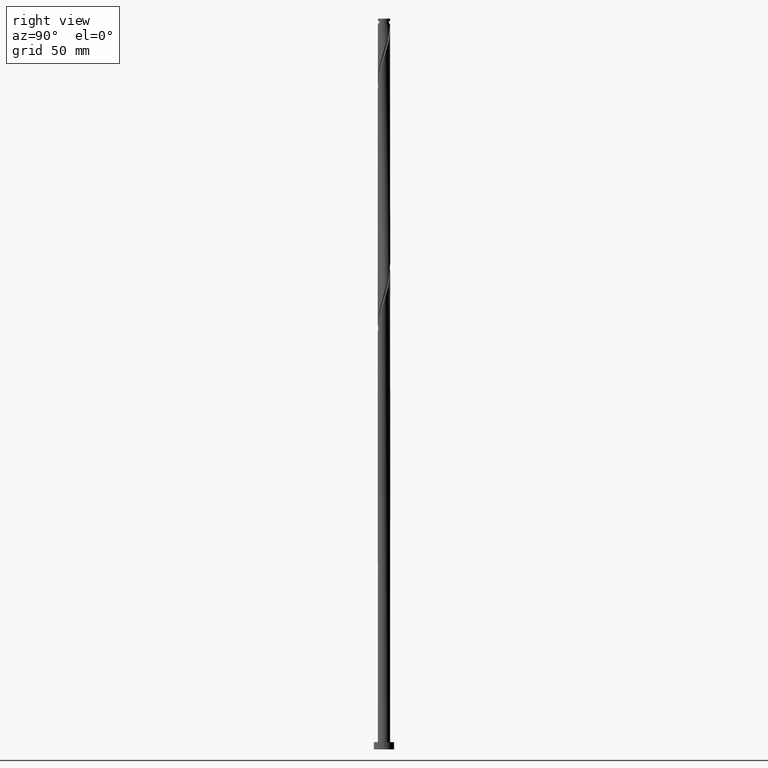
[diagram: clean part render]
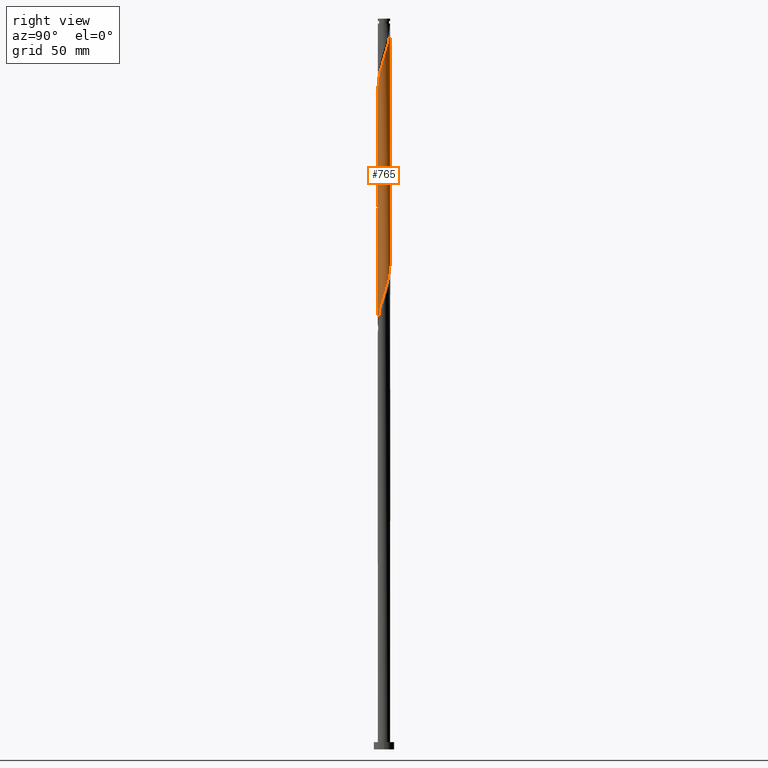
[diagram: same view with one face highlighted and labeled with its STEP entity id]
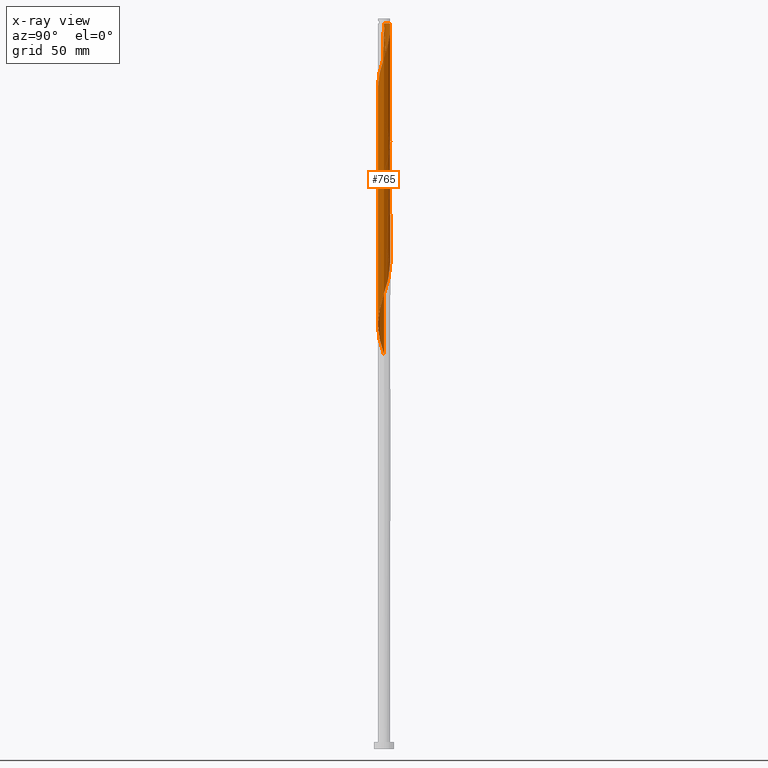
[diagram: x-ray of the same camera — body ghosted, the highlighted face saturated]
A machine part, right view. The second image highlights one B-rep face of the part: STEP entity #765.
The next image is the same camera in x-ray: the body ghosted, the highlighted face saturated — about 0% of this face is hidden behind the body in this view.
In plain terms, the highlighted cylindrical surface (bore or boss wall) has radius 4.25 mm, axis along (-0, -0, -1).
Its self-contained STEP definition (entity closure, byte-faithful):
#1 = CARTESIAN_POINT ( 'NONE',  ( -4.250000000000000000, -1.752932060623057619E-15, 436.7433290349165986 ) ) ;
#7 = ORIENTED_EDGE ( 'NONE', *, *, #824, .F. ) ;
#20 = CARTESIAN_POINT ( 'NONE',  ( 1.642039868822442683, 3.919975136298390339, 327.3156320569198101 ) ) ;
#28 = CARTESIAN_POINT ( 'NONE',  ( 3.311961364131821295, 2.696039358933081331, 320.8052153902530108 ) ) ;
#39 = CARTESIAN_POINT ( 'NONE',  ( -4.248298052652877743, -0.4355226265580420253, 432.7843820569196396 ) ) ;
#48 = CARTESIAN_POINT ( 'NONE',  ( -4.249999999999952038, 0.000000000000000000, 496.5864653902530677 ) ) ;
#50 = CARTESIAN_POINT ( 'NONE',  ( -1.223382839876598460, -4.091582912457441878, 448.4093820569197533 ) ) ;
#74 = CARTESIAN_POINT ( 'NONE',  ( -4.171608679362800665, -0.8125152467892268193, 355.9614653902530108 ) ) ;
#86 = CARTESIAN_POINT ( 'NONE',  ( -2.722351768502281999, -3.290367327662780728, 365.0760487235864957 ) ) ;
#95 = CARTESIAN_POINT ( 'NONE',  ( 0.01693748642809034602, -4.249966249460524814, 452.3156320569196964 ) ) ;
#96 = CARTESIAN_POINT ( 'NONE',  ( -0.4355226265580428024, -4.248298052652872414, 372.8885487235865526 ) ) ;
#107 = CARTESIAN_POINT ( 'NONE',  ( -3.311961364131819519, -2.696039358933082219, 362.4718820569198101 ) ) ;
#118 = CARTESIAN_POINT ( 'NONE',  ( 0.8125152467892264863, -4.171608679362800665, 376.7947987235864389 ) ) ;
#120 = CARTESIAN_POINT ( 'NONE',  ( 0.01693748642809234442, 4.249966249460520373, 415.8572987235864957 ) ) ;
#121 = CARTESIAN_POINT ( 'NONE',  ( -3.774294141907104105, -1.998104109595876698, 359.8677153902530677 ) ) ;
#122 = CARTESIAN_POINT ( 'NONE',  ( -4.250000000000001776, 0.008468776840620492394, 436.7169754803994124 ) ) ;
#126 = CARTESIAN_POINT ( 'NONE',  ( -2.375237744811971030, -3.524307826456217541, 283.0447987235864957 ) ) ;
#140 = CARTESIAN_POINT ( 'NONE',  ( 4.164999999999999147, -0.8457393215406326936, 309.0864653902531245 ) ) ;
#141 = CARTESIAN_POINT ( 'NONE',  ( 1.642039868822442683, 3.919975136298390339, 410.6489653902530108 ) ) ;
#148 = CARTESIAN_POINT ( 'NONE',  ( 3.524307826456221981, 2.375237744811974139, 480.9614653902530677 ) ) ;
#150 = CARTESIAN_POINT ( 'NONE',  ( 1.610743474736235248, -3.932938527182270327, 296.0656320569198670 ) ) ;
#162 = CARTESIAN_POINT ( 'NONE',  ( 2.347071734264479126, -3.543127753019461590, 298.6697987235864389 ) ) ;
#169 = CARTESIAN_POINT ( 'NONE',  ( -4.250000000000000888, -0.4100392134481713469, 271.3526424736659806 ) ) ;
#185 = EDGE_CURVE ( 'NONE', #831, #1007, #481, .T. ) ;
#196 = CARTESIAN_POINT ( 'NONE',  ( -2.696039358933081775, 3.311961364131819519, 341.6385487235864389 ) ) ;
#206 = CARTESIAN_POINT ( 'NONE',  ( -0.8125152467892270414, 4.171608679362800665, 335.1281320569197533 ) ) ;
#216 = CARTESIAN_POINT ( 'NONE',  ( -4.081701947347132098, -1.255956016523221752, 435.3885487235862684 ) ) ;
#224 = CARTESIAN_POINT ( 'NONE',  ( -4.081701947347124992, 1.255956016523221308, 349.4510487235863820 ) ) ;
#232 = CARTESIAN_POINT ( 'NONE',  ( 3.543127753019465143, -2.347071734264483567, 465.3364653902530108 ) ) ;
#240 = CARTESIAN_POINT ( 'NONE',  ( -0.4016476537018593418, -4.251634446268169221, 451.0135487235863820 ) ) ;
#256 = CARTESIAN_POINT ( 'NONE',  ( -1.642039868822442683, -3.919975136298390783, 368.9822987235863820 ) ) ;
#265 = CARTESIAN_POINT ( 'NONE',  ( 2.993203343297936581, 3.017156566317051869, 483.5656320569196396 ) ) ;
#268 = CIRCLE ( 'NONE', #463, 4.249999999999952038 ) ;
#278 = CARTESIAN_POINT ( 'NONE',  ( 4.250000000000003553, 0.4100392134481592454, 396.3526424736660374 ) ) ;
#285 = CARTESIAN_POINT ( 'NONE',  ( 4.165000000000003588, 0.8457393215406316944, 475.7531320569197533 ) ) ;
#287 = CARTESIAN_POINT ( 'NONE',  ( -3.932938527182269439, -1.610743474736235248, 358.5656320569198670 ) ) ;
#293 = CARTESIAN_POINT ( 'NONE',  ( -3.932938527182269439, -1.610743474736235248, 275.2322987235864957 ) ) ;
#297 = CARTESIAN_POINT ( 'NONE',  ( 3.290367327662780728, -2.722351768502281999, 302.5760487235864957 ) ) ;
#318 = CARTESIAN_POINT ( 'NONE',  ( -1.610743474736238801, -3.932938527182274768, 447.1072987235863252 ) ) ;
#325 = ORIENTED_EDGE ( 'NONE', *, *, #334, .F. ) ;
#334 = EDGE_CURVE ( 'NONE', #987, #831, #1754, .T. ) ;
#338 = CARTESIAN_POINT ( 'NONE',  ( -3.758248325249661015, -2.028123721121661838, 437.9927153902530677 ) ) ;
#349 = CARTESIAN_POINT ( 'NONE',  ( -2.347071734264483123, -3.543127753019464699, 444.5031320569196964 ) ) ;
#360 = CARTESIAN_POINT ( 'NONE',  ( -0.4016476537018580650, 4.251634446268164780, 333.8260487235863820 ) ) ;
#369 = CARTESIAN_POINT ( 'NONE',  ( 4.171608679362805105, -0.8125152467892311492, 470.5447987235863820 ) ) ;
#386 = CARTESIAN_POINT ( 'NONE',  ( 3.524307826456216652, -2.375237744811972807, 387.2114653902530108 ) ) ;
#405 = CARTESIAN_POINT ( 'NONE',  ( -4.251634446268164780, -0.4016476537018571769, 354.6593820569197533 ) ) ;
#406 = CARTESIAN_POINT ( 'NONE',  ( -2.993203343297932584, 3.017156566317050537, 426.2739653902530677 ) ) ;
#414 = CARTESIAN_POINT ( 'NONE',  ( 4.081701947347132098, 1.255956016523219754, 477.0552153902530108 ) ) ;
#416 = CARTESIAN_POINT ( 'NONE',  ( 0.8457393215406330267, 4.164999999999999147, 329.9197987235864389 ) ) ;
#424 = CARTESIAN_POINT ( 'NONE',  ( 3.932938527182270327, 1.610743474736234804, 400.2322987235864389 ) ) ;
#425 = CARTESIAN_POINT ( 'NONE',  ( -4.164999999999999147, 0.8457393215406323606, 434.0864653902530677 ) ) ;
#435 = CARTESIAN_POINT ( 'NONE',  ( 4.248298052652872414, -0.4355226265580450229, 310.3885487235863820 ) ) ;
#444 = CARTESIAN_POINT ( 'NONE',  ( 3.290367327662785168, 2.722351768502282887, 482.2635487235864389 ) ) ;
#446 = CARTESIAN_POINT ( 'NONE',  ( 3.919975136298390339, -1.642039868822442683, 306.4822987235864957 ) ) ;
#457 = CARTESIAN_POINT ( 'NONE',  ( 0.8125152467892264863, -4.171608679362800665, 293.4614653902530677 ) ) ;
#458 = CARTESIAN_POINT ( 'NONE',  ( 2.028123721121660950, 3.758248325249654798, 409.3468820569197533 ) ) ;
#463 = AXIS2_PLACEMENT_3D ( 'NONE', #775, #472, #929 ) ;
#467 = CARTESIAN_POINT ( 'NONE',  ( 2.028123721121660950, 3.758248325249654798, 326.0135487235864957 ) ) ;
#468 = CARTESIAN_POINT ( 'NONE',  ( -4.165000000000003588, -0.8457393215406322495, 434.0864653902530677 ) ) ;
#472 = DIRECTION ( 'NONE',  ( -0.000000000000000000, -0.000000000000000000, -1.000000000000000000 ) ) ;
#478 = CARTESIAN_POINT ( 'NONE',  ( 4.091582912457437438, 1.223382839876595352, 315.5968820569198101 ) ) ;
#479 = LINE ( 'NONE', #934, #1933 ) ;
#481 =( BOUNDED_CURVE ( )  B_SPLINE_CURVE ( 2, ( #566, #998, #1305, #555, #1775, #1784, #1630, #1478, #386, #1762, #574, #1019, #1610, #1009, #988, #1600, #118, #853, #1460, #96, #706, #1796, #256, #1467, #844, #86, #1918, #107, #1928, #121, #287, #1962, #74, #405, #1090, #1753, #1120, #224, #1110, #1269, #1249, #1552, #500, #196, #1899, #526, #1725, #1134, #206, #360, #960, #1786, #416, #1385, #20, #467, #1044, #1070, #917, #28, #626, #1682, #898, #478, #638, #1339, #1811, #435, #140, #1974, #446, #1055, #759, #297, #1522, #907, #162, #1510, #150, #608, #457, #1062, #1668, #1512, #889, #1633, #1806, #1005, #126, #1956, #1475, #746, #1335, #595, #293, #1828, #1860, #169, #1393 ),
 .UNSPECIFIED., .F., .T. ) 
 B_SPLINE_CURVE_WITH_KNOTS ( ( 3, 2, 2, 2, 2, 2, 2, 2, 2, 2, 2, 2, 2, 2, 2, 2, 2, 2, 2, 2, 2, 2, 2, 2, 2, 2, 2, 2, 2, 2, 2, 2, 2, 2, 2, 2, 2, 2, 2, 2, 2, 2, 2, 2, 2, 2, 2, 2, 2, 3 ),
 ( 0.5545286902180873723, 0.5546875000000000000, 0.5625000000000000000, 0.5703125000000000000, 0.5781250000000000000, 0.5859375000000000000, 0.5937500000000000000, 0.6015625000000000000, 0.6093750000000000000, 0.6171875000000000000, 0.6250000000000000000, 0.6328125000000000000, 0.6406250000000000000, 0.6484375000000000000, 0.6562500000000000000, 0.6640625000000000000, 0.6718750000000000000, 0.6796875000000000000, 0.6875000000000000000, 0.6953125000000000000, 0.7031250000000000000, 0.7109375000000000000, 0.7187500000000000000, 0.7265625000000000000, 0.7343750000000000000, 0.7421875000000000000, 0.7500000000000000000, 0.7578125000000000000, 0.7656250000000000000, 0.7734375000000000000, 0.7812500000000000000, 0.7890625000000000000, 0.7968750000000000000, 0.8046875000000000000, 0.8125000000000000000, 0.8203125000000000000, 0.8281250000000000000, 0.8359375000000000000, 0.8437500000000000000, 0.8515625000000000000, 0.8593750000000000000, 0.8671875000000000000, 0.8750000000000000000, 0.8828125000000000000, 0.8906250000000000000, 0.8984375000000000000, 0.9062500000000000000, 0.9140625000000000000, 0.9218750000000000000, 0.9295286902180871502 ),
 .UNSPECIFIED. ) 
 CURVE ( )  GEOMETRIC_REPRESENTATION_ITEM ( )  RATIONAL_B_SPLINE_CURVE ( ( 0.9089165573359594408, 0.9090019243628641998, 0.9090909090909560231, 0.9047133878838620191, 0.9090909090909560231, 0.9047133878838620191, 0.9090909090909560231, 0.9047133878838620191, 0.9090909090909560231, 0.9047133878838620191, 0.9090909090909560231, 0.9047133878838620191, 0.9090909090909560231, 0.9047133878838620191, 0.9090909090909560231, 0.9047133878838620191, 0.9090909090909560231, 0.9047133878838620191, 0.9090909090909560231, 0.9047133878838620191, 0.9090909090909560231, 0.9047133878838620191, 0.9090909090909560231, 0.9047133878838620191, 0.9090909090909560231, 0.9047133878838620191, 0.9090909090909560231, 0.9047133878838620191, 0.9090909090909560231, 0.9047133878838620191, 0.9090909090909560231, 0.9047133878838620191, 0.9090909090909560231, 0.9047133878838620191, 0.9090909090909560231, 0.9047133878838620191, 0.9090909090909560231, 0.9047133878838620191, 0.9090909090909560231, 0.9047133878838620191, 0.9090909090909560231, 0.9047133878838620191, 0.9090909090909560231, 0.9047133878838620191, 0.9090909090909560231, 0.9047133878838620191, 0.9090909090909560231, 0.9047133878838620191, 0.9090909090909560231, 0.9047133878838620191, 0.9090909090909560231, 0.9047133878838620191, 0.9090909090909560231, 0.9047133878838620191, 0.9090909090909560231, 0.9047133878838620191, 0.9090909090909560231, 0.9047133878838620191, 0.9090909090909560231, 0.9047133878838620191, 0.9090909090909560231, 0.9047133878838620191, 0.9090909090909560231, 0.9047133878838620191, 0.9090909090909560231, 0.9047133878838620191, 0.9090909090909560231, 0.9047133878838620191, 0.9090909090909560231, 0.9047133878838620191, 0.9090909090909560231, 0.9047133878838620191, 0.9090909090909560231, 0.9047133878838620191, 0.9090909090909560231, 0.9047133878838620191, 0.9090909090909560231, 0.9047133878838620191, 0.9090909090909560231, 0.9047133878838620191, 0.9090909090909560231, 0.9047133878838620191, 0.9090909090909560231, 0.9047133878838620191, 0.9090909090909560231, 0.9047133878838620191, 0.9090909090909560231, 0.9047133878838620191, 0.9090909090909560231, 0.9047133878838620191, 0.9090909090909560231, 0.9047133878838620191, 0.9090909090909560231, 0.9047133878838620191, 0.9090909090909560231, 0.9047133878838620191, 0.9090909090909560231, 0.9048023726119538424, 0.9089165573359594408 ) ) 
 REPRESENTATION_ITEM ( '' )  );
#483 = LINE ( 'NONE', #1083, #588 ) ;
#499 = CARTESIAN_POINT ( 'NONE',  ( -3.290367327662785168, -2.722351768502283775, 440.5968820569196964 ) ) ;
#500 = CARTESIAN_POINT ( 'NONE',  ( -2.993203343297932584, 3.017156566317050537, 342.9406320569197533 ) ) ;
#506 = CARTESIAN_POINT ( 'NONE',  ( -0.4355226265580431910, 4.248298052652877743, 495.2843820569196396 ) ) ;
#514 = CARTESIAN_POINT ( 'NONE',  ( 0.000000000000000000, 0.000000000000000000, 500.0000000000000000 ) ) ;
#526 = CARTESIAN_POINT ( 'NONE',  ( -1.998104109595877587, 3.774294141907104105, 339.0343820569196964 ) ) ;
#535 = CARTESIAN_POINT ( 'NONE',  ( 3.311961364131822183, -2.696039358933086660, 464.0343820569196964 ) ) ;
#544 = ORIENTED_EDGE ( 'NONE', *, *, #682, .F. ) ;
#553 = VERTEX_POINT ( 'NONE', #1081 ) ;
#554 = CARTESIAN_POINT ( 'NONE',  ( 2.028123721121660950, -3.758248325249661015, 458.8260487235864389 ) ) ;
#555 = CARTESIAN_POINT ( 'NONE',  ( 4.248298052652872414, -0.4355226265580450229, 393.7218820569197533 ) ) ;
#566 = CARTESIAN_POINT ( 'NONE',  ( 4.250000000000000888, 2.251506570156994761E-15, 395.0766623682498562 ) ) ;
#574 = CARTESIAN_POINT ( 'NONE',  ( 2.993203343297932584, -3.017156566317050537, 384.6072987235863820 ) ) ;
#588 = VECTOR ( 'NONE', #945, 1000.000000000000000 ) ;
#592 = LINE ( 'NONE', #1676, #1445 ) ;
#595 = CARTESIAN_POINT ( 'NONE',  ( -3.774294141907104105, -1.998104109595876698, 276.5343820569196964 ) ) ;
#608 = CARTESIAN_POINT ( 'NONE',  ( 1.223382839876596240, -4.091582912457437438, 294.7635487235864389 ) ) ;
#626 = CARTESIAN_POINT ( 'NONE',  ( 3.543127753019461590, 2.347071734264479126, 319.5031320569198101 ) ) ;
#632 = DIRECTION ( 'NONE',  ( -0.000000000000000000, -0.000000000000000000, -1.000000000000000000 ) ) ;
#638 = CARTESIAN_POINT ( 'NONE',  ( 4.171608679362799776, 0.8125152467892281516, 314.2947987235864389 ) ) ;
#639 = CARTESIAN_POINT ( 'NONE',  ( -4.249966249460524814, -0.01693748642809151175, 431.4822987235863820 ) ) ;
#649 = CARTESIAN_POINT ( 'NONE',  ( -3.524307826456223314, -2.375237744811973251, 439.2947987235862684 ) ) ;
#661 = CARTESIAN_POINT ( 'NONE',  ( -3.919975136298397000, -1.642039868822441573, 436.6906320569196964 ) ) ;
#682 = EDGE_CURVE ( 'NONE', #1926, #553, #1199, .T. ) ;
#697 = VERTEX_POINT ( 'NONE', #48 ) ;
#706 = CARTESIAN_POINT ( 'NONE',  ( -0.8457393215406324716, -4.164999999999999147, 371.5864653902530677 ) ) ;
#716 = CARTESIAN_POINT ( 'NONE',  ( 3.758248325249661015, 2.028123721121660950, 479.6593820569198101 ) ) ;
#720 = CARTESIAN_POINT ( 'NONE',  ( -1.998104109595877587, 3.774294141907104105, 422.3677153902530677 ) ) ;
#729 = CARTESIAN_POINT ( 'NONE',  ( 0.8457393215406330267, 4.164999999999999147, 413.2531320569197533 ) ) ;
#738 = CARTESIAN_POINT ( 'NONE',  ( 1.610743474736238801, 3.932938527182274768, 488.7739653902528971 ) ) ;
#746 = CARTESIAN_POINT ( 'NONE',  ( -3.311961364131819519, -2.696039358933082219, 279.1385487235864389 ) ) ;
#759 = CARTESIAN_POINT ( 'NONE',  ( 3.524307826456216652, -2.375237744811972807, 303.8781320569198670 ) ) ;
#765 = ADVANCED_FACE ( 'NONE', ( #1842 ), #1852, .T. ) ;
#770 = CARTESIAN_POINT ( 'NONE',  ( -0.01693748642808981172, 4.249966249460523926, 493.9822987235862115 ) ) ;
#775 = CARTESIAN_POINT ( 'NONE',  ( 0.000000000000000000, 0.000000000000000000, 496.5864653902530677 ) ) ;
#800 = EDGE_CURVE ( 'NONE', #697, #553, #268, .T. ) ;
#824 = EDGE_CURVE ( 'NONE', #1017, #831, #592, .T. ) ;
#828 = CARTESIAN_POINT ( 'NONE',  ( 4.251634446268169221, -0.4016476537018595083, 471.8468820569197533 ) ) ;
#831 = VERTEX_POINT ( 'NONE', #1687 ) ;
#842 = DIRECTION ( 'NONE',  ( -0.000000000000000000, -0.000000000000000000, -1.000000000000000000 ) ) ;
#844 = CARTESIAN_POINT ( 'NONE',  ( -2.375237744811971030, -3.524307826456217541, 366.3781320569196964 ) ) ;
#845 = ORIENTED_EDGE ( 'NONE', *, *, #185, .F. ) ;
#853 = CARTESIAN_POINT ( 'NONE',  ( 0.4016476537018568993, -4.251634446268164780, 375.4927153902530677 ) ) ;
#867 = CARTESIAN_POINT ( 'NONE',  ( -2.347071734264480014, 3.543127753019461146, 423.6697987235864389 ) ) ;
#889 = CARTESIAN_POINT ( 'NONE',  ( -0.8457393215406324716, -4.164999999999999147, 288.2531320569197533 ) ) ;
#896 = CARTESIAN_POINT ( 'NONE',  ( 0.8125152467892313712, 4.171608679362805105, 491.3781320569196396 ) ) ;
#898 = CARTESIAN_POINT ( 'NONE',  ( 3.932938527182270327, 1.610743474736234804, 316.8989653902531245 ) ) ;
#907 = CARTESIAN_POINT ( 'NONE',  ( 2.696039358933081331, -3.311961364131821295, 299.9718820569197533 ) ) ;
#917 = CARTESIAN_POINT ( 'NONE',  ( 3.017156566317050537, 2.993203343297932584, 322.1072987235863820 ) ) ;
#926 = CARTESIAN_POINT ( 'NONE',  ( -0.8125152467892291508, -4.171608679362805105, 449.7114653902530108 ) ) ;
#929 = DIRECTION ( 'NONE',  ( -1.000000000000000000, 0.000000000000000000, 0.000000000000000000 ) ) ;
#934 = CARTESIAN_POINT ( 'NONE',  ( -4.250000000000000000, 0.000000000000000000, 500.0000000000000000 ) ) ;
#945 = DIRECTION ( 'NONE',  ( -0.000000000000000000, -0.000000000000000000, -1.000000000000000000 ) ) ;
#949 = CARTESIAN_POINT ( 'NONE',  ( -0.8457393215406271425, 4.164999999999961844, 496.5864653902529540 ) ) ;
#960 = CARTESIAN_POINT ( 'NONE',  ( 0.01693748642809234442, 4.249966249460520373, 332.5239653902531813 ) ) ;
#963 = CARTESIAN_POINT ( 'NONE',  ( -4.250000000000000000, -1.752932060623057619E-15, 436.7433290349165986 ) ) ;
#987 = VERTEX_POINT ( 'NONE', #1 ) ;
#988 = CARTESIAN_POINT ( 'NONE',  ( 1.610743474736235248, -3.932938527182270327, 379.3989653902531245 ) ) ;
#998 = CARTESIAN_POINT ( 'NONE',  ( 4.250000000000002665, -0.008468776840619977181, 395.0503088137327268 ) ) ;
#1005 = CARTESIAN_POINT ( 'NONE',  ( -2.028123721121660950, -3.758248325249655242, 284.3468820569198101 ) ) ;
#1007 = VERTEX_POINT ( 'NONE', #1192 ) ;
#1009 = CARTESIAN_POINT ( 'NONE',  ( 1.998104109595875810, -3.774294141907104105, 380.7010487235865526 ) ) ;
#1017 = VERTEX_POINT ( 'NONE', #1657 ) ;
#1019 = CARTESIAN_POINT ( 'NONE',  ( 2.696039358933081331, -3.311961364131821295, 383.3052153902531245 ) ) ;
#1021 = CARTESIAN_POINT ( 'NONE',  ( -0.4016476537018580650, 4.251634446268164780, 417.1593820569198101 ) ) ;
#1031 = CARTESIAN_POINT ( 'NONE',  ( 2.347071734264483567, 3.543127753019464699, 486.1697987235863252 ) ) ;
#1034 = CARTESIAN_POINT ( 'NONE',  ( 4.091582912457437438, 1.223382839876595352, 398.9302153902529540 ) ) ;
#1044 = CARTESIAN_POINT ( 'NONE',  ( 2.375237744811973251, 3.524307826456216652, 324.7114653902531245 ) ) ;
#1045 = CARTESIAN_POINT ( 'NONE',  ( 3.543127753019461590, 2.347071734264479126, 402.8364653902530108 ) ) ;
#1055 = CARTESIAN_POINT ( 'NONE',  ( 3.758248325249654798, -2.028123721121660950, 305.1802153902531245 ) ) ;
#1062 = CARTESIAN_POINT ( 'NONE',  ( 0.4016476537018568993, -4.251634446268164780, 292.1593820569197533 ) ) ;
#1070 = CARTESIAN_POINT ( 'NONE',  ( 2.722351768502281999, 3.290367327662780284, 323.4093820569198101 ) ) ;
#1081 = CARTESIAN_POINT ( 'NONE',  ( -0.8457393215406271425, 4.164999999999961844, 496.5864653902529540 ) ) ;
#1083 = CARTESIAN_POINT ( 'NONE',  ( -4.250000000000000000, 0.000000000000000000, 500.0000000000000000 ) ) ;
#1090 = CARTESIAN_POINT ( 'NONE',  ( -4.249966249460519485, 0.01693748642809267055, 353.3572987235863820 ) ) ;
#1100 = CARTESIAN_POINT ( 'NONE',  ( -2.993203343297936136, -3.017156566317052757, 441.8989653902529540 ) ) ;
#1110 = CARTESIAN_POINT ( 'NONE',  ( -3.919975136298390783, 1.642039868822441129, 348.1489653902530108 ) ) ;
#1120 = CARTESIAN_POINT ( 'NONE',  ( -4.164999999999999147, 0.8457393215406323606, 350.7531320569198101 ) ) ;
#1134 = CARTESIAN_POINT ( 'NONE',  ( -1.223382839876596240, 4.091582912457437438, 336.4302153902529540 ) ) ;
#1152 = CARTESIAN_POINT ( 'NONE',  ( 3.774294141907105882, -1.998104109595882250, 466.6385487235863252 ) ) ;
#1154 = CARTESIAN_POINT ( 'NONE',  ( -3.524307826456217541, 2.375237744811971030, 428.8781320569197533 ) ) ;
#1163 = CARTESIAN_POINT ( 'NONE',  ( -1.223382839876596240, 4.091582912457437438, 419.7635487235864957 ) ) ;
#1192 = CARTESIAN_POINT ( 'NONE',  ( -4.250000000000000000, -1.752932060623057619E-15, 270.0766623682499130 ) ) ;
#1198 = CARTESIAN_POINT ( 'NONE',  ( 0.4355226265580428024, 4.248298052652872414, 414.5552153902530677 ) ) ;
#1199 =( BOUNDED_CURVE ( )  B_SPLINE_CURVE ( 2, ( #1724, #1562, #639, #39, #468, #216, #661, #338, #649, #499, #1100, #1844, #349, #1407, #318, #50, #926, #240, #95, #1259, #1599, #1293, #1927, #554, #1890, #1736, #1910, #535, #232, #1152, #1898, #1774, #369, #828, #1268, #1439, #285, #414, #1950, #716, #148, #444, #265, #1795, #1031, #1490, #738, #1809, #896, #1397, #770, #506, #949 ),
 .UNSPECIFIED., .F., .T. ) 
 B_SPLINE_CURVE_WITH_KNOTS ( ( 3, 2, 2, 2, 2, 2, 2, 2, 2, 2, 2, 2, 2, 2, 2, 2, 2, 2, 2, 2, 2, 2, 2, 2, 2, 2, 3 ),
 ( 0.5545286902180872612, 0.5546875000000000000, 0.5625000000000000000, 0.5703125000000000000, 0.5781250000000000000, 0.5859375000000000000, 0.5937500000000000000, 0.6015625000000000000, 0.6093750000000000000, 0.6171875000000000000, 0.6250000000000000000, 0.6328125000000000000, 0.6406250000000000000, 0.6484375000000000000, 0.6562500000000000000, 0.6640625000000000000, 0.6718750000000000000, 0.6796875000000000000, 0.6875000000000000000, 0.6953125000000000000, 0.7031250000000000000, 0.7109375000000000000, 0.7187500000000000000, 0.7265625000000000000, 0.7343750000000000000, 0.7421875000000000000, 0.7500000000000000000 ),
 .UNSPECIFIED. ) 
 CURVE ( )  GEOMETRIC_REPRESENTATION_ITEM ( )  RATIONAL_B_SPLINE_CURVE ( ( 0.9089165573359646588, 0.9090019243628694179, 0.9090909090909612411, 0.9047133878838673482, 0.9090909090909612411, 0.9047133878838673482, 0.9090909090909612411, 0.9047133878838673482, 0.9090909090909612411, 0.9047133878838673482, 0.9090909090909612411, 0.9047133878838673482, 0.9090909090909612411, 0.9047133878838673482, 0.9090909090909612411, 0.9047133878838673482, 0.9090909090909612411, 0.9047133878838673482, 0.9090909090909612411, 0.9047133878838673482, 0.9090909090909612411, 0.9047133878838673482, 0.9090909090909612411, 0.9047133878838673482, 0.9090909090909612411, 0.9047133878838673482, 0.9090909090909612411, 0.9047133878838673482, 0.9090909090909612411, 0.9047133878838673482, 0.9090909090909612411, 0.9047133878838673482, 0.9090909090909612411, 0.9047133878838673482, 0.9090909090909612411, 0.9047133878838673482, 0.9090909090909612411, 0.9047133878838673482, 0.9090909090909612411, 0.9047133878838673482, 0.9090909090909612411, 0.9047133878838673482, 0.9090909090909612411, 0.9047133878838673482, 0.9090909090909612411, 0.9047133878838673482, 0.9090909090909612411, 0.9047133878838673482, 0.9090909090909612411, 0.9047133878838673482, 0.9090909090909612411, 0.9047133878838673482, 0.9090909090909612411 ) ) 
 REPRESENTATION_ITEM ( '' )  );
#1249 = CARTESIAN_POINT ( 'NONE',  ( -3.524307826456217541, 2.375237744811971030, 345.5447987235863820 ) ) ;
#1259 = CARTESIAN_POINT ( 'NONE',  ( 0.4355226265580418032, -4.248298052652877743, 453.6177153902530677 ) ) ;
#1268 = CARTESIAN_POINT ( 'NONE',  ( 4.249966249460523926, 0.01693748642809001989, 473.1489653902530677 ) ) ;
#1269 = CARTESIAN_POINT ( 'NONE',  ( -3.758248325249656574, 2.028123721121660950, 346.8468820569196964 ) ) ;
#1293 = CARTESIAN_POINT ( 'NONE',  ( 1.255956016523221752, -4.081701947347132098, 456.2218820569196964 ) ) ;
#1301 = ORIENTED_EDGE ( 'NONE', *, *, #1424, .F. ) ;
#1305 = CARTESIAN_POINT ( 'NONE',  ( 4.249966249460520373, -0.01693748642809213278, 395.0239653902530108 ) ) ;
#1308 = CARTESIAN_POINT ( 'NONE',  ( -1.610743474736236136, 3.932938527182269439, 421.0656320569197533 ) ) ;
#1317 = CARTESIAN_POINT ( 'NONE',  ( 2.375237744811973251, 3.524307826456216652, 408.0447987235863252 ) ) ;
#1324 = ORIENTED_EDGE ( 'NONE', *, *, #824, .T. ) ;
#1335 = CARTESIAN_POINT ( 'NONE',  ( -3.543127753019461146, -2.347071734264479570, 277.8364653902531245 ) ) ;
#1339 = CARTESIAN_POINT ( 'NONE',  ( 4.251634446268164780, 0.4016476537018566773, 312.9927153902531245 ) ) ;
#1342 = CARTESIAN_POINT ( 'NONE',  ( 3.774294141907102773, 1.998104109595877587, 401.5343820569196964 ) ) ;
#1385 = CARTESIAN_POINT ( 'NONE',  ( 1.255956016523220642, 4.081701947347126769, 328.6177153902530108 ) ) ;
#1393 = CARTESIAN_POINT ( 'NONE',  ( -4.250000000000000000, -1.752932060623057619E-15, 270.0766623682499130 ) ) ;
#1397 = CARTESIAN_POINT ( 'NONE',  ( 0.4016476537018597859, 4.251634446268169221, 492.6802153902529540 ) ) ;
#1407 = CARTESIAN_POINT ( 'NONE',  ( -1.998104109595880251, -3.774294141907106770, 445.8052153902530677 ) ) ;
#1421 = CARTESIAN_POINT ( 'NONE',  ( -4.250000000000007105, 2.940191733793575533E-15, 431.4296017455895935 ) ) ;
#1424 = EDGE_CURVE ( 'NONE', #697, #987, #479, .T. ) ;
#1439 = CARTESIAN_POINT ( 'NONE',  ( 4.248298052652877743, 0.4355226265580434131, 474.4510487235863820 ) ) ;
#1445 = VECTOR ( 'NONE', #632, 1000.000000000000000 ) ;
#1451 = CARTESIAN_POINT ( 'NONE',  ( -4.249966249460519485, 0.01693748642809267055, 436.6906320569196964 ) ) ;
#1460 = CARTESIAN_POINT ( 'NONE',  ( -0.01693748642809192462, -4.249966249460520373, 374.1906320569197533 ) ) ;
#1467 = CARTESIAN_POINT ( 'NONE',  ( -2.028123721121660950, -3.758248325249655242, 367.6802153902531245 ) ) ;
#1475 = CARTESIAN_POINT ( 'NONE',  ( -3.017156566317050537, -2.993203343297932584, 280.4406320569197533 ) ) ;
#1474 = AXIS2_PLACEMENT_3D ( 'NONE', #514, #842, #1608 ) ;
#1478 = CARTESIAN_POINT ( 'NONE',  ( 3.758248325249654798, -2.028123721121660950, 388.5135487235863820 ) ) ;
#1490 = CARTESIAN_POINT ( 'NONE',  ( 1.998104109595882250, 3.774294141907105438, 487.4718820569197533 ) ) ;
#1493 = CARTESIAN_POINT ( 'NONE',  ( -3.919975136298390783, 1.642039868822441129, 431.4822987235864957 ) ) ;
#1510 = CARTESIAN_POINT ( 'NONE',  ( 1.998104109595875810, -3.774294141907104105, 297.3677153902530108 ) ) ;
#1512 = CARTESIAN_POINT ( 'NONE',  ( -0.4355226265580428024, -4.248298052652872414, 289.5552153902531245 ) ) ;
#1522 = CARTESIAN_POINT ( 'NONE',  ( 2.993203343297932584, -3.017156566317050537, 301.2739653902530677 ) ) ;
#1552 = CARTESIAN_POINT ( 'NONE',  ( -3.290367327662780728, 2.722351768502281999, 344.2427153902530108 ) ) ;
#1562 = CARTESIAN_POINT ( 'NONE',  ( -4.250000000000007994, -0.008468776840613399109, 431.4559553001068366 ) ) ;
#1599 = CARTESIAN_POINT ( 'NONE',  ( 0.8457393215406318054, -4.165000000000003588, 454.9197987235863820 ) ) ;
#1600 = CARTESIAN_POINT ( 'NONE',  ( 1.223382839876596240, -4.091582912457437438, 378.0968820569199238 ) ) ;
#1603 = CARTESIAN_POINT ( 'NONE',  ( -3.758248325249656574, 2.028123721121660950, 430.1802153902530677 ) ) ;
#1608 = DIRECTION ( 'NONE',  ( -1.000000000000000000, 0.000000000000000000, 0.000000000000000000 ) ) ;
#1610 = CARTESIAN_POINT ( 'NONE',  ( 2.347071734264479126, -3.543127753019461590, 382.0031320569197533 ) ) ;
#1620 = DIRECTION ( 'NONE',  ( -0.000000000000000000, -0.000000000000000000, -1.000000000000000000 ) ) ;
#1621 = CARTESIAN_POINT ( 'NONE',  ( -2.696039358933081775, 3.311961364131819519, 424.9718820569197533 ) ) ;
#1628 = ORIENTED_EDGE ( 'NONE', *, *, #1738, .T. ) ;
#1630 = CARTESIAN_POINT ( 'NONE',  ( 3.919975136298390339, -1.642039868822442683, 389.8156320569196396 ) ) ;
#1633 = CARTESIAN_POINT ( 'NONE',  ( -1.255956016523221530, -4.081701947347124992, 286.9510487235864389 ) ) ;
#1643 = CARTESIAN_POINT ( 'NONE',  ( 4.171608679362799776, 0.8125152467892281516, 397.6281320569197533 ) ) ;
#1657 = CARTESIAN_POINT ( 'NONE',  ( 4.250000000000000000, 5.204748896376250699E-16, 496.5864653902530677 ) ) ;
#1668 = CARTESIAN_POINT ( 'NONE',  ( -0.01693748642809192462, -4.249966249460520373, 290.8572987235864957 ) ) ;
#1671 = CARTESIAN_POINT ( 'NONE',  ( 2.722351768502281999, 3.290367327662780284, 406.7427153902530108 ) ) ;
#1676 = CARTESIAN_POINT ( 'NONE',  ( 4.250000000000000000, 5.204748896376250699E-16, 500.0000000000000000 ) ) ;
#1682 = CARTESIAN_POINT ( 'NONE',  ( 3.774294141907102773, 1.998104109595877587, 318.2010487235864957 ) ) ;
#1687 = CARTESIAN_POINT ( 'NONE',  ( 4.250000000000000888, 2.251506570156994761E-15, 395.0766623682498562 ) ) ;
#1724 = CARTESIAN_POINT ( 'NONE',  ( -4.250000000000007105, 2.940191733793575533E-15, 431.4296017455895935 ) ) ;
#1725 = CARTESIAN_POINT ( 'NONE',  ( -1.610743474736236136, 3.932938527182269439, 337.7322987235863820 ) ) ;
#1736 = CARTESIAN_POINT ( 'NONE',  ( 2.722351768502283775, -3.290367327662785168, 461.4302153902531245 ) ) ;
#1738 = EDGE_CURVE ( 'NONE', #1926, #1007, #483, .T. ) ;
#1753 = CARTESIAN_POINT ( 'NONE',  ( -4.248298052652872414, 0.4355226265580426359, 352.0552153902530677 ) ) ;
#1754 =( BOUNDED_CURVE ( )  B_SPLINE_CURVE ( 2, ( #963, #122, #1451, #1799, #425, #1765, #1493, #1603, #1154, #1777, #406, #1621, #867, #720, #1308, #1163, #1788, #1021, #120, #1198, #729, #1833, #141, #458, #1317, #1671, #1975, #1798, #1045, #1342, #424, #1034, #1643, #278, #1822 ),
 .UNSPECIFIED., .F., .T. ) 
 B_SPLINE_CURVE_WITH_KNOTS ( ( 3, 2, 2, 2, 2, 2, 2, 2, 2, 2, 2, 2, 2, 2, 2, 2, 2, 3 ),
 ( 0.4295286902180873723, 0.4296875000000000000, 0.4375000000000000000, 0.4453125000000000000, 0.4531250000000000000, 0.4609375000000000000, 0.4687500000000000000, 0.4765625000000000000, 0.4843750000000000000, 0.4921875000000000000, 0.5000000000000000000, 0.5078125000000000000, 0.5156250000000000000, 0.5234375000000000000, 0.5312500000000000000, 0.5390625000000000000, 0.5468750000000000000, 0.5545286902180873723 ),
 .UNSPECIFIED. ) 
 CURVE ( )  GEOMETRIC_REPRESENTATION_ITEM ( )  RATIONAL_B_SPLINE_CURVE ( ( 0.9089165573359594408, 0.9090019243628641998, 0.9090909090909560231, 0.9047133878838620191, 0.9090909090909560231, 0.9047133878838620191, 0.9090909090909560231, 0.9047133878838620191, 0.9090909090909560231, 0.9047133878838620191, 0.9090909090909560231, 0.9047133878838620191, 0.9090909090909560231, 0.9047133878838620191, 0.9090909090909560231, 0.9047133878838620191, 0.9090909090909560231, 0.9047133878838620191, 0.9090909090909560231, 0.9047133878838620191, 0.9090909090909560231, 0.9047133878838620191, 0.9090909090909560231, 0.9047133878838620191, 0.9090909090909560231, 0.9047133878838620191, 0.9090909090909560231, 0.9047133878838620191, 0.9090909090909560231, 0.9047133878838620191, 0.9090909090909560231, 0.9047133878838620191, 0.9090909090909560231, 0.9048023726119536203, 0.9089165573359594408 ) ) 
 REPRESENTATION_ITEM ( '' )  );
#1762 = CARTESIAN_POINT ( 'NONE',  ( 3.290367327662780728, -2.722351768502281999, 385.9093820569197533 ) ) ;
#1765 = CARTESIAN_POINT ( 'NONE',  ( -4.081701947347124992, 1.255956016523221308, 432.7843820569198670 ) ) ;
#1774 = CARTESIAN_POINT ( 'NONE',  ( 4.091582912457441878, -1.223382839876598904, 469.2427153902530677 ) ) ;
#1775 = CARTESIAN_POINT ( 'NONE',  ( 4.164999999999999147, -0.8457393215406326936, 392.4197987235863820 ) ) ;
#1777 = CARTESIAN_POINT ( 'NONE',  ( -3.290367327662780728, 2.722351768502281999, 427.5760487235864957 ) ) ;
#1782 = ORIENTED_EDGE ( 'NONE', *, *, #800, .T. ) ;
#1784 = CARTESIAN_POINT ( 'NONE',  ( 4.081701947347126769, -1.255956016523220642, 391.1177153902531245 ) ) ;
#1786 = CARTESIAN_POINT ( 'NONE',  ( 0.4355226265580428024, 4.248298052652872414, 331.2218820569197533 ) ) ;
#1788 = CARTESIAN_POINT ( 'NONE',  ( -0.8125152467892270414, 4.171608679362800665, 418.4614653902530677 ) ) ;
#1795 = CARTESIAN_POINT ( 'NONE',  ( 2.696039358933085328, 3.311961364131823959, 484.8677153902530677 ) ) ;
#1796 = CARTESIAN_POINT ( 'NONE',  ( -1.255956016523221530, -4.081701947347124992, 370.2843820569198101 ) ) ;
#1798 = CARTESIAN_POINT ( 'NONE',  ( 3.311961364131821295, 2.696039358933081331, 404.1385487235864389 ) ) ;
#1799 = CARTESIAN_POINT ( 'NONE',  ( -4.248298052652872414, 0.4355226265580426359, 435.3885487235864389 ) ) ;
#1806 = CARTESIAN_POINT ( 'NONE',  ( -1.642039868822442683, -3.919975136298390783, 285.6489653902531245 ) ) ;
#1809 = CARTESIAN_POINT ( 'NONE',  ( 1.223382839876599126, 4.091582912457440990, 490.0760487235863252 ) ) ;
#1811 = CARTESIAN_POINT ( 'NONE',  ( 4.249966249460520373, -0.01693748642809213278, 311.6906320569197533 ) ) ;
#1822 = CARTESIAN_POINT ( 'NONE',  ( 4.250000000000000888, 2.251506570156994761E-15, 395.0766623682498562 ) ) ;
#1828 = CARTESIAN_POINT ( 'NONE',  ( -4.091582912457437438, -1.223382839876596240, 273.9302153902530677 ) ) ;
#1833 = CARTESIAN_POINT ( 'NONE',  ( 1.255956016523220642, 4.081701947347126769, 411.9510487235864389 ) ) ;
#1842 = FACE_OUTER_BOUND ( 'NONE', #1971, .T. ) ;
#1844 = CARTESIAN_POINT ( 'NONE',  ( -2.696039358933086660, -3.311961364131822627, 443.2010487235863820 ) ) ;
#1852 = CYLINDRICAL_SURFACE ( 'NONE', #1474, 4.250000000000000000 ) ;
#1860 = CARTESIAN_POINT ( 'NONE',  ( -4.171608679362800665, -0.8125152467892268193, 272.6281320569198101 ) ) ;
#1890 = CARTESIAN_POINT ( 'NONE',  ( 2.375237744811972362, -3.524307826456223314, 460.1281320569196964 ) ) ;
#1898 = CARTESIAN_POINT ( 'NONE',  ( 3.932938527182274768, -1.610743474736238801, 467.9406320569196396 ) ) ;
#1899 = CARTESIAN_POINT ( 'NONE',  ( -2.347071734264480014, 3.543127753019461146, 340.3364653902530677 ) ) ;
#1910 = CARTESIAN_POINT ( 'NONE',  ( 3.017156566317052757, -2.993203343297936581, 462.7322987235862684 ) ) ;
#1918 = CARTESIAN_POINT ( 'NONE',  ( -3.017156566317050537, -2.993203343297932584, 363.7739653902530677 ) ) ;
#1926 = VERTEX_POINT ( 'NONE', #1421 ) ;
#1927 = CARTESIAN_POINT ( 'NONE',  ( 1.642039868822442461, -3.919975136298395668, 457.5239653902530677 ) ) ;
#1928 = CARTESIAN_POINT ( 'NONE',  ( -3.543127753019461146, -2.347071734264479570, 361.1697987235863820 ) ) ;
#1933 = VECTOR ( 'NONE', #1620, 1000.000000000000000 ) ;
#1950 = CARTESIAN_POINT ( 'NONE',  ( 3.919975136298395668, 1.642039868822442461, 478.3572987235863820 ) ) ;
#1956 = CARTESIAN_POINT ( 'NONE',  ( -2.722351768502281999, -3.290367327662780728, 281.7427153902530108 ) ) ;
#1962 = CARTESIAN_POINT ( 'NONE',  ( -4.091582912457437438, -1.223382839876596240, 357.2635487235864957 ) ) ;
#1971 = EDGE_LOOP ( 'NONE', ( #1301, #1782, #544, #1628, #845, #7, #1324, #325 ) ) ;
#1974 = CARTESIAN_POINT ( 'NONE',  ( 4.081701947347126769, -1.255956016523220642, 307.7843820569198101 ) ) ;
#1975 = CARTESIAN_POINT ( 'NONE',  ( 3.017156566317050537, 2.993203343297932584, 405.4406320569197533 ) ) ;